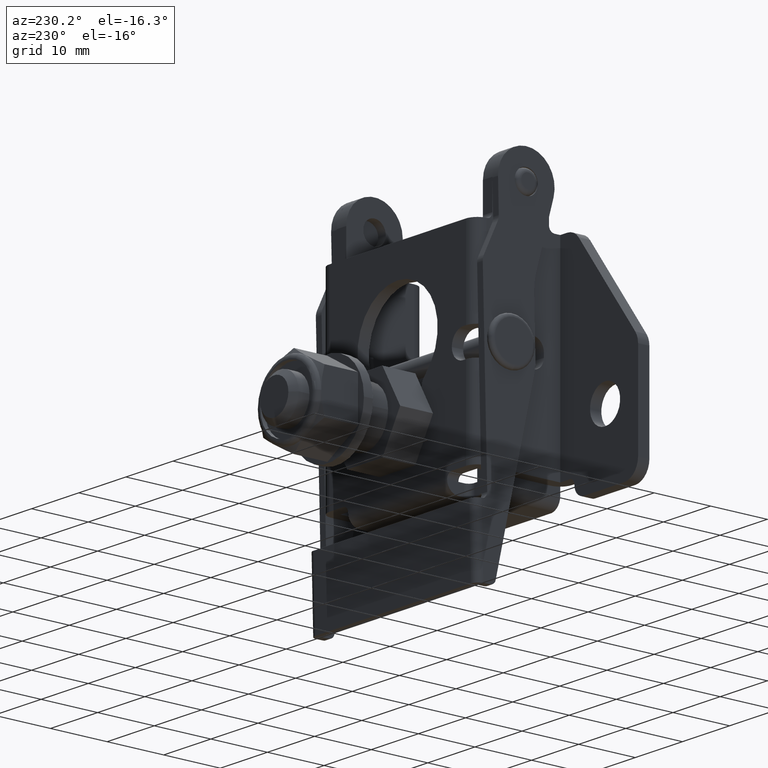
[diagram: clean part render]
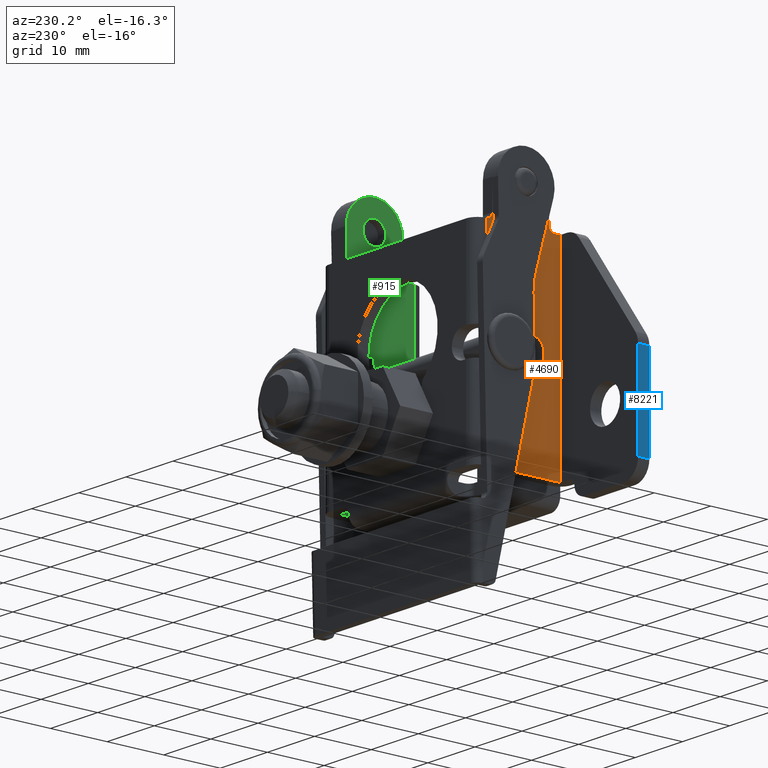
[diagram: same view with three faces highlighted in distinct colors, each labeled with its STEP entity id]
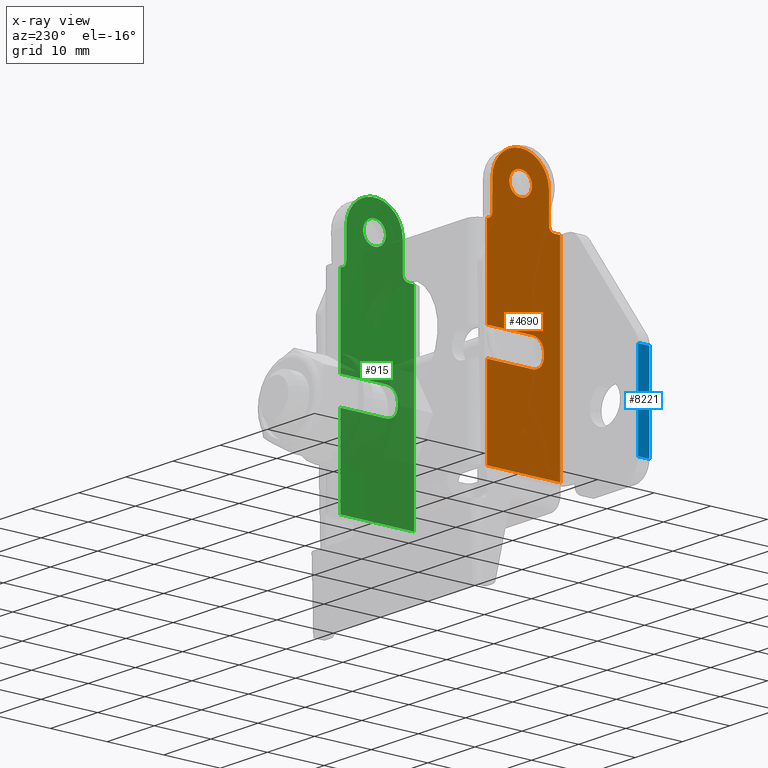
[diagram: x-ray of the same camera — body ghosted, the three highlighted faces saturated]
A machine part, auxiliary view with three faces highlighted in distinct colors.
The next image is the same camera in x-ray (body ghosted, the three faces saturated) — at least one of them is partly hidden behind the body in this view.
Their STEP definitions:

[orange] entity #4690 — the highlighted planar face has unit normal (1, 0, -0).
#81 = AXIS2_PLACEMENT_3D ( 'NONE', #822, #6253, #1584 ) ;
#176 = EDGE_LOOP ( 'NONE', ( #1496, #8383 ) ) ;
#343 = CARTESIAN_POINT ( 'NONE',  ( -16.50000000000000000, 2.000000000000001800, -9.000000000000001800 ) ) ;
#402 = DIRECTION ( 'NONE',  ( 0.0000000000000000000, 0.0000000000000000000, -1.000000000000000000 ) ) ;
#462 = EDGE_CURVE ( 'NONE', #858, #6034, #3776, .T. ) ;
#501 = DIRECTION ( 'NONE',  ( 1.000000000000000000, 0.0000000000000000000, -1.577021341797097600E-016 ) ) ;
#509 = DIRECTION ( 'NONE',  ( -1.577021341797097600E-016, -0.0000000000000000000, -1.000000000000000000 ) ) ;
#538 = VERTEX_POINT ( 'NONE', #4076 ) ;
#582 = CARTESIAN_POINT ( 'NONE',  ( -16.49999999999999600, 4.900000000000001200, 8.100000000000005000 ) ) ;
#588 = DIRECTION ( 'NONE',  ( 1.000000000000000000, 0.0000000000000000000, -1.577021341797097600E-016 ) ) ;
#603 = DIRECTION ( 'NONE',  ( 0.0000000000000000000, 0.0000000000000000000, -1.000000000000000000 ) ) ;
#605 = EDGE_CURVE ( 'NONE', #9067, #1378, #730, .T. ) ;
#730 = LINE ( 'NONE', #2570, #8750 ) ;
#758 = EDGE_CURVE ( 'NONE', #538, #5832, #8724, .T. ) ;
#822 = CARTESIAN_POINT ( 'NONE',  ( -16.49999999999999600, 6.900000000000001200, 8.100000000000005000 ) ) ;
#858 = VERTEX_POINT ( 'NONE', #9347 ) ;
#974 = ORIENTED_EDGE ( 'NONE', *, *, #3189, .T. ) ;
#1037 = CARTESIAN_POINT ( 'NONE',  ( -16.49999999999999300, 9.000000000000001800, 32.00000000000000000 ) ) ;
#1048 = DIRECTION ( 'NONE',  ( 1.000000000000000000, 0.0000000000000000000, -1.577021341797097600E-016 ) ) ;
#1160 = VERTEX_POINT ( 'NONE', #8485 ) ;
#1229 = DIRECTION ( 'NONE',  ( -1.577021341797097600E-016, 0.0000000000000000000, -1.000000000000000000 ) ) ;
#1297 = ORIENTED_EDGE ( 'NONE', *, *, #2509, .F. ) ;
#1352 = DIRECTION ( 'NONE',  ( 0.0000000000000000000, -1.000000000000000000, 0.0000000000000000000 ) ) ;
#1378 = VERTEX_POINT ( 'NONE', #6156 ) ;
#1451 = ORIENTED_EDGE ( 'NONE', *, *, #1656, .T. ) ;
#1496 = ORIENTED_EDGE ( 'NONE', *, *, #9829, .T. ) ;
#1526 = VECTOR ( 'NONE', #9018, 1000.000000000000000 ) ;
#1528 = CARTESIAN_POINT ( 'NONE',  ( -16.49999999999999300, 4.000000000000000000, 27.00000000000000700 ) ) ;
#1584 = DIRECTION ( 'NONE',  ( 0.0000000000000000000, 0.0000000000000000000, -1.000000000000000000 ) ) ;
#1656 = EDGE_CURVE ( 'NONE', #7479, #538, #3473, .T. ) ;
#1661 = FACE_OUTER_BOUND ( 'NONE', #7454, .T. ) ;
#1698 = VECTOR ( 'NONE', #5457, 1000.000000000000000 ) ;
#1751 = CARTESIAN_POINT ( 'NONE',  ( -16.49999999999999600, 6.900000000000001200, 10.90000000000000700 ) ) ;
#1772 = EDGE_CURVE ( 'NONE', #10036, #1160, #4582, .T. ) ;
#1800 = DIRECTION ( 'NONE',  ( 0.0000000000000000000, 0.0000000000000000000, -1.000000000000000000 ) ) ;
#1841 = EDGE_CURVE ( 'NONE', #2374, #3604, #7483, .T. ) ;
#1859 = LINE ( 'NONE', #7558, #9920 ) ;
#1921 = AXIS2_PLACEMENT_3D ( 'NONE', #1037, #6449, #1800 ) ;
#2002 = AXIS2_PLACEMENT_3D ( 'NONE', #8855, #4203, #9646 ) ;
#2006 = ORIENTED_EDGE ( 'NONE', *, *, #9273, .T. ) ;
#2028 = EDGE_CURVE ( 'NONE', #4285, #9067, #8579, .T. ) ;
#2125 = DIRECTION ( 'NONE',  ( 0.0000000000000000000, -1.000000000000000000, 0.0000000000000000000 ) ) ;
#2162 = CARTESIAN_POINT ( 'NONE',  ( -16.49999999999999300, 3.000000000000000000, 26.00000000000000700 ) ) ;
#2239 = EDGE_CURVE ( 'NONE', #6034, #3604, #9197, .T. ) ;
#2261 = EDGE_CURVE ( 'NONE', #1160, #1378, #7107, .T. ) ;
#2293 = VERTEX_POINT ( 'NONE', #7229 ) ;
#2324 = CIRCLE ( 'NONE', #8843, 1.000000000000000900 ) ;
#2374 = VERTEX_POINT ( 'NONE', #343 ) ;
#2399 = AXIS2_PLACEMENT_3D ( 'NONE', #9729, #5059, #402 ) ;
#2493 = VECTOR ( 'NONE', #4098, 1000.000000000000000 ) ;
#2509 = EDGE_CURVE ( 'NONE', #2293, #2374, #5176, .T. ) ;
#2518 = VECTOR ( 'NONE', #1352, 1000.000000000000000 ) ;
#2542 = CARTESIAN_POINT ( 'NONE',  ( -16.49999999999999300, 9.000000000000001800, 32.00000000000000000 ) ) ;
#2570 = CARTESIAN_POINT ( 'NONE',  ( -16.50000000000000000, 4.000000000000000000, -12.00000000000000000 ) ) ;
#2819 = VERTEX_POINT ( 'NONE', #3353 ) ;
#2933 = CARTESIAN_POINT ( 'NONE',  ( -16.49999999999999600, 15.00000000000000200, 10.90000000000000700 ) ) ;
#3059 = EDGE_CURVE ( 'NONE', #5832, #6363, #4439, .T. ) ;
#3090 = ORIENTED_EDGE ( 'NONE', *, *, #462, .T. ) ;
#3096 = VECTOR ( 'NONE', #509, 1000.000000000000000 ) ;
#3161 = EDGE_CURVE ( 'NONE', #4285, #2293, #1859, .T. ) ;
#3189 = EDGE_CURVE ( 'NONE', #6363, #5563, #6252, .T. ) ;
#3221 = VECTOR ( 'NONE', #8735, 1000.000000000000000 ) ;
#3324 = DIRECTION ( 'NONE',  ( 0.0000000000000000000, 0.0000000000000000000, -1.000000000000000000 ) ) ;
#3329 = CARTESIAN_POINT ( 'NONE',  ( -16.49999999999999300, 9.000000000000001800, 33.99999999999999300 ) ) ;
#3353 = CARTESIAN_POINT ( 'NONE',  ( -16.49999999999999300, 9.000000000000001800, 30.00000000000000700 ) ) ;
#3473 = LINE ( 'NONE', #2933, #5311 ) ;
#3484 = FACE_BOUND ( 'NONE', #176, .T. ) ;
#3580 = CARTESIAN_POINT ( 'NONE',  ( -16.50000000000000000, 2.000000000000001800, -9.000000000000001800 ) ) ;
#3604 = VERTEX_POINT ( 'NONE', #6981 ) ;
#3670 = CARTESIAN_POINT ( 'NONE',  ( -16.50000000000000000, 2.000000000000001800, -12.00000000000000000 ) ) ;
#3702 = CARTESIAN_POINT ( 'NONE',  ( -16.49999999999999600, 4.900000000000001200, 10.90000000000000700 ) ) ;
#3776 = LINE ( 'NONE', #9331, #1698 ) ;
#3783 = DIRECTION ( 'NONE',  ( 1.000000000000000000, 0.0000000000000000000, -1.577021341797097600E-016 ) ) ;
#3976 = VERTEX_POINT ( 'NONE', #3329 ) ;
#4076 = CARTESIAN_POINT ( 'NONE',  ( -16.49999999999999600, 15.00000000000000200, 10.90000000000000700 ) ) ;
#4079 = CARTESIAN_POINT ( 'NONE',  ( -16.50000000000000000, 15.00000000000000200, -9.000000000000001800 ) ) ;
#4098 = DIRECTION ( 'NONE',  ( -5.782411586589358600E-016, 0.0000000000000000000, 1.000000000000000000 ) ) ;
#4143 = ORIENTED_EDGE ( 'NONE', *, *, #3161, .F. ) ;
#4203 = DIRECTION ( 'NONE',  ( 1.000000000000000000, -0.0000000000000000000, -1.577021341797097600E-016 ) ) ;
#4285 = VERTEX_POINT ( 'NONE', #2162 ) ;
#4390 = CARTESIAN_POINT ( 'NONE',  ( -16.50000000000000000, 2.000000000000001800, -12.00000000000000000 ) ) ;
#4420 = ORIENTED_EDGE ( 'NONE', *, *, #2261, .F. ) ;
#4439 = CIRCLE ( 'NONE', #6155, 2.000000000000000000 ) ;
#4575 = LINE ( 'NONE', #6401, #2493 ) ;
#4582 = CIRCLE ( 'NONE', #1921, 4.999999999999997300 ) ;
#4690 = ADVANCED_FACE ( 'NONE', ( #3484, #1661 ), #6752, .F. ) ;
#4877 = EDGE_CURVE ( 'NONE', #5563, #858, #7963, .T. ) ;
#4892 = CARTESIAN_POINT ( 'NONE',  ( -16.49999999999999300, 15.00000000000000200, 26.00000000000000400 ) ) ;
#4996 = CIRCLE ( 'NONE', #2399, 1.999999999999994900 ) ;
#5059 = DIRECTION ( 'NONE',  ( 1.000000000000000000, -0.0000000000000000000, -1.577021341797097600E-016 ) ) ;
#5166 = CARTESIAN_POINT ( 'NONE',  ( -16.49999999999999600, 6.900000000000001200, 8.900000000000007500 ) ) ;
#5176 = LINE ( 'NONE', #4390, #3096 ) ;
#5311 = VECTOR ( 'NONE', #1229, 1000.000000000000000 ) ;
#5358 = ORIENTED_EDGE ( 'NONE', *, *, #605, .T. ) ;
#5457 = DIRECTION ( 'NONE',  ( 0.0000000000000000000, 1.000000000000000000, 1.433655765270088600E-016 ) ) ;
#5563 = VERTEX_POINT ( 'NONE', #582 ) ;
#5696 = CARTESIAN_POINT ( 'NONE',  ( -16.49999999999999300, 15.00000000000000400, 27.00000000000000400 ) ) ;
#5832 = VERTEX_POINT ( 'NONE', #1751 ) ;
#5845 = EDGE_CURVE ( 'NONE', #6551, #10036, #4575, .T. ) ;
#5934 = DIRECTION ( 'NONE',  ( 0.0000000000000000000, 0.0000000000000000000, -1.000000000000000000 ) ) ;
#5951 = CARTESIAN_POINT ( 'NONE',  ( -16.49999999999999300, 14.00000000000000200, 32.00000000000000000 ) ) ;
#6012 = DIRECTION ( 'NONE',  ( -1.577021341797097600E-016, 0.0000000000000000000, -1.000000000000000000 ) ) ;
#6034 = VERTEX_POINT ( 'NONE', #6248 ) ;
#6155 = AXIS2_PLACEMENT_3D ( 'NONE', #5166, #501, #5934 ) ;
#6156 = CARTESIAN_POINT ( 'NONE',  ( -16.49999999999999300, 4.000000000000000000, 32.00000000000000000 ) ) ;
#6167 = ORIENTED_EDGE ( 'NONE', *, *, #3059, .T. ) ;
#6205 = CIRCLE ( 'NONE', #2002, 1.999999999999994900 ) ;
#6248 = CARTESIAN_POINT ( 'NONE',  ( -16.49999999999999600, 15.00000000000000200, 6.100000000000006800 ) ) ;
#6252 = LINE ( 'NONE', #3702, #7820 ) ;
#6253 = DIRECTION ( 'NONE',  ( 1.000000000000000000, 0.0000000000000000000, -1.577021341797097600E-016 ) ) ;
#6363 = VERTEX_POINT ( 'NONE', #10022 ) ;
#6398 = ORIENTED_EDGE ( 'NONE', *, *, #2028, .T. ) ;
#6401 = CARTESIAN_POINT ( 'NONE',  ( -16.49999999999999300, 14.00000000000000200, 26.00000000000000400 ) ) ;
#6449 = DIRECTION ( 'NONE',  ( 1.000000000000000000, -0.0000000000000000000, -1.577021341797097600E-016 ) ) ;
#6464 = DIRECTION ( 'NONE',  ( 0.0000000000000000000, 0.0000000000000000000, -1.000000000000000000 ) ) ;
#6540 = AXIS2_PLACEMENT_3D ( 'NONE', #3670, #588, #6012 ) ;
#6551 = VERTEX_POINT ( 'NONE', #7141 ) ;
#6752 = PLANE ( 'NONE',  #6540 ) ;
#6767 = CARTESIAN_POINT ( 'NONE',  ( -16.49999999999999600, 17.00000000000000000, 10.90000000000000700 ) ) ;
#6928 = ORIENTED_EDGE ( 'NONE', *, *, #2239, .T. ) ;
#6981 = CARTESIAN_POINT ( 'NONE',  ( -16.50000000000000000, 15.00000000000000200, -9.000000000000001800 ) ) ;
#7107 = CIRCLE ( 'NONE', #8509, 4.999999999999997300 ) ;
#7141 = CARTESIAN_POINT ( 'NONE',  ( -16.49999999999999300, 14.00000000000000200, 27.00000000000000400 ) ) ;
#7229 = CARTESIAN_POINT ( 'NONE',  ( -16.49999999999999300, 2.000000000000001800, 26.00000000000000400 ) ) ;
#7454 = EDGE_LOOP ( 'NONE', ( #9533, #2006, #1451, #8011, #6167, #974, #8038, #3090, #6928, #9728, #1297, #4143, #6398, #5358, #4420, #7463 ) ) ;
#7463 = ORIENTED_EDGE ( 'NONE', *, *, #1772, .F. ) ;
#7479 = VERTEX_POINT ( 'NONE', #4892 ) ;
#7483 = LINE ( 'NONE', #3580, #1526 ) ;
#7558 = CARTESIAN_POINT ( 'NONE',  ( -16.49999999999999300, 2.000000000000001800, 26.00000000000000700 ) ) ;
#7820 = VECTOR ( 'NONE', #603, 1000.000000000000000 ) ;
#7963 = CIRCLE ( 'NONE', #81, 2.000000000000000000 ) ;
#7967 = DIRECTION ( 'NONE',  ( 1.000000000000000000, -0.0000000000000000000, -1.577021341797097600E-016 ) ) ;
#8011 = ORIENTED_EDGE ( 'NONE', *, *, #758, .T. ) ;
#8038 = ORIENTED_EDGE ( 'NONE', *, *, #4877, .T. ) ;
#8383 = ORIENTED_EDGE ( 'NONE', *, *, #9372, .T. ) ;
#8432 = CARTESIAN_POINT ( 'NONE',  ( -16.49999999999999300, 3.000000000000000000, 27.00000000000000400 ) ) ;
#8485 = CARTESIAN_POINT ( 'NONE',  ( -16.49999999999999300, 9.000000000000001800, 37.00000000000000000 ) ) ;
#8509 = AXIS2_PLACEMENT_3D ( 'NONE', #2542, #7967, #3324 ) ;
#8579 = CIRCLE ( 'NONE', #9762, 1.000000000000000900 ) ;
#8724 = LINE ( 'NONE', #6767, #2518 ) ;
#8735 = DIRECTION ( 'NONE',  ( -1.577021341797097600E-016, 0.0000000000000000000, -1.000000000000000000 ) ) ;
#8750 = VECTOR ( 'NONE', #9594, 1000.000000000000000 ) ;
#8843 = AXIS2_PLACEMENT_3D ( 'NONE', #5696, #1048, #6464 ) ;
#8855 = CARTESIAN_POINT ( 'NONE',  ( -16.49999999999999300, 9.000000000000001800, 32.00000000000000000 ) ) ;
#9018 = DIRECTION ( 'NONE',  ( 0.0000000000000000000, 1.000000000000000000, 0.0000000000000000000 ) ) ;
#9067 = VERTEX_POINT ( 'NONE', #1528 ) ;
#9197 = LINE ( 'NONE', #4079, #3221 ) ;
#9225 = DIRECTION ( 'NONE',  ( 0.0000000000000000000, 0.0000000000000000000, -1.000000000000000000 ) ) ;
#9273 = EDGE_CURVE ( 'NONE', #6551, #7479, #2324, .T. ) ;
#9331 = CARTESIAN_POINT ( 'NONE',  ( -16.49999999999999600, 17.00000000000000000, 6.100000000000006800 ) ) ;
#9347 = CARTESIAN_POINT ( 'NONE',  ( -16.49999999999999600, 6.900000000000001200, 6.100000000000005000 ) ) ;
#9372 = EDGE_CURVE ( 'NONE', #3976, #2819, #4996, .T. ) ;
#9533 = ORIENTED_EDGE ( 'NONE', *, *, #5845, .F. ) ;
#9594 = DIRECTION ( 'NONE',  ( 1.577021341797097600E-016, -0.0000000000000000000, 1.000000000000000000 ) ) ;
#9646 = DIRECTION ( 'NONE',  ( 0.0000000000000000000, 0.0000000000000000000, -1.000000000000000000 ) ) ;
#9728 = ORIENTED_EDGE ( 'NONE', *, *, #1841, .F. ) ;
#9729 = CARTESIAN_POINT ( 'NONE',  ( -16.49999999999999300, 9.000000000000001800, 32.00000000000000000 ) ) ;
#9762 = AXIS2_PLACEMENT_3D ( 'NONE', #8432, #3783, #9225 ) ;
#9829 = EDGE_CURVE ( 'NONE', #2819, #3976, #6205, .T. ) ;
#9920 = VECTOR ( 'NONE', #2125, 1000.000000000000000 ) ;
#10022 = CARTESIAN_POINT ( 'NONE',  ( -16.49999999999999600, 4.900000000000001200, 8.900000000000007500 ) ) ;
#10036 = VERTEX_POINT ( 'NONE', #5951 ) ;

[blue] entity #8221 — the highlighted planar face has unit normal (1, 0, -0).
#305 = CARTESIAN_POINT ( 'NONE',  ( -33.00000000000000000, 0.0000000000000000000, -12.00000000000000000 ) ) ;
#427 = LINE ( 'NONE', #7291, #4327 ) ;
#741 = CARTESIAN_POINT ( 'NONE',  ( -33.00000000000000000, 2.000000000000001800, -9.000000000000000000 ) ) ;
#806 = LINE ( 'NONE', #2918, #6499 ) ;
#1045 = CARTESIAN_POINT ( 'NONE',  ( -33.00000000000000000, 17.00000000000000000, -12.00000000000000000 ) ) ;
#1315 = VECTOR ( 'NONE', #4956, 1000.000000000000000 ) ;
#1809 = DIRECTION ( 'NONE',  ( -3.154042683594195600E-016, 0.0000000000000000000, -1.000000000000000000 ) ) ;
#2350 = EDGE_CURVE ( 'NONE', #9230, #10001, #427, .T. ) ;
#2918 = CARTESIAN_POINT ( 'NONE',  ( -33.00000000000000000, 2.000000000000001800, -12.00000000000000000 ) ) ;
#2953 = ORIENTED_EDGE ( 'NONE', *, *, #5593, .F. ) ;
#2962 = EDGE_LOOP ( 'NONE', ( #9849, #3227, #2953, #3645 ) ) ;
#3227 = ORIENTED_EDGE ( 'NONE', *, *, #2350, .T. ) ;
#3318 = CARTESIAN_POINT ( 'NONE',  ( -32.99999999999999300, 0.0000000000000000000, 7.000000000000009800 ) ) ;
#3363 = LINE ( 'NONE', #305, #1315 ) ;
#3419 = DIRECTION ( 'NONE',  ( -0.0000000000000000000, 1.000000000000000000, -0.0000000000000000000 ) ) ;
#3645 = ORIENTED_EDGE ( 'NONE', *, *, #4661, .T. ) ;
#4327 = VECTOR ( 'NONE', #3419, 1000.000000000000000 ) ;
#4431 = DIRECTION ( 'NONE',  ( 0.0000000000000000000, -1.000000000000000000, 0.0000000000000000000 ) ) ;
#4481 = EDGE_CURVE ( 'NONE', #6954, #9230, #3363, .T. ) ;
#4661 = EDGE_CURVE ( 'NONE', #9557, #6954, #9955, .T. ) ;
#4956 = DIRECTION ( 'NONE',  ( 3.154042683594195100E-016, 0.0000000000000000000, 1.000000000000000000 ) ) ;
#5156 = CARTESIAN_POINT ( 'NONE',  ( -33.00000000000000000, 2.000000000000001800, 7.000000000000009800 ) ) ;
#5211 = CARTESIAN_POINT ( 'NONE',  ( -33.00000000000000000, 17.00000000000000000, -9.000000000000000000 ) ) ;
#5234 = DIRECTION ( 'NONE',  ( 0.0000000000000000000, 0.0000000000000000000, 1.000000000000000000 ) ) ;
#5593 = EDGE_CURVE ( 'NONE', #9557, #10001, #806, .T. ) ;
#6040 = VECTOR ( 'NONE', #4431, 1000.000000000000000 ) ;
#6456 = DIRECTION ( 'NONE',  ( 1.000000000000000000, 0.0000000000000000000, -3.154042683594195600E-016 ) ) ;
#6499 = VECTOR ( 'NONE', #5234, 1000.000000000000000 ) ;
#6954 = VERTEX_POINT ( 'NONE', #8131 ) ;
#7215 = AXIS2_PLACEMENT_3D ( 'NONE', #1045, #6456, #1809 ) ;
#7291 = CARTESIAN_POINT ( 'NONE',  ( -32.99999999999999300, 2.000000000000001800, 7.000000000000010700 ) ) ;
#8131 = CARTESIAN_POINT ( 'NONE',  ( -33.00000000000000000, 0.0000000000000000000, -9.000000000000000000 ) ) ;
#8221 = ADVANCED_FACE ( 'NONE', ( #9653 ), #9586, .F. ) ;
#9230 = VERTEX_POINT ( 'NONE', #3318 ) ;
#9557 = VERTEX_POINT ( 'NONE', #741 ) ;
#9586 = PLANE ( 'NONE',  #7215 ) ;
#9653 = FACE_OUTER_BOUND ( 'NONE', #2962, .T. ) ;
#9849 = ORIENTED_EDGE ( 'NONE', *, *, #4481, .T. ) ;
#9955 = LINE ( 'NONE', #5211, #6040 ) ;
#10001 = VERTEX_POINT ( 'NONE', #5156 ) ;

[green] entity #915 — the highlighted planar face has unit normal (-1, 0, 0).
#21 = DIRECTION ( 'NONE',  ( -1.182766006347823100E-016, 0.0000000000000000000, -1.000000000000000000 ) ) ;
#333 = CARTESIAN_POINT ( 'NONE',  ( 14.50000000000000200, 6.900000000000001200, 8.900000000000007500 ) ) ;
#460 = CIRCLE ( 'NONE', #3716, 1.000000000000000900 ) ;
#493 = LINE ( 'NONE', #1750, #8760 ) ;
#580 = DIRECTION ( 'NONE',  ( 0.0000000000000000000, -1.000000000000000000, 0.0000000000000000000 ) ) ;
#807 = EDGE_CURVE ( 'NONE', #9171, #9737, #460, .T. ) ;
#808 = DIRECTION ( 'NONE',  ( 1.000000000000000000, -0.0000000000000000000, -1.182766006347823100E-016 ) ) ;
#840 = CARTESIAN_POINT ( 'NONE',  ( 14.50000000000000500, 2.999999999999999100, 26.00000000000000400 ) ) ;
#841 = EDGE_CURVE ( 'NONE', #5411, #8621, #6171, .T. ) ;
#894 = VERTEX_POINT ( 'NONE', #840 ) ;
#915 = ADVANCED_FACE ( 'NONE', ( #3620, #5922 ), #9447, .T. ) ;
#1023 = AXIS2_PLACEMENT_3D ( 'NONE', #7259, #2616, #8036 ) ;
#1044 = ORIENTED_EDGE ( 'NONE', *, *, #1869, .F. ) ;
#1108 = DIRECTION ( 'NONE',  ( 0.0000000000000000000, 0.0000000000000000000, 1.000000000000000000 ) ) ;
#1262 = LINE ( 'NONE', #2876, #7201 ) ;
#1292 = VECTOR ( 'NONE', #5947, 1000.000000000000000 ) ;
#1360 = LINE ( 'NONE', #4980, #7296 ) ;
#1361 = CARTESIAN_POINT ( 'NONE',  ( 14.50000000000000000, 15.00000000000000000, -9.000000000000005300 ) ) ;
#1393 = CARTESIAN_POINT ( 'NONE',  ( 14.49999999999999500, 4.000000000000000000, 32.00000000000000000 ) ) ;
#1398 = VECTOR ( 'NONE', #8199, 1000.000000000000000 ) ;
#1417 = LINE ( 'NONE', #6723, #8343 ) ;
#1452 = EDGE_CURVE ( 'NONE', #2344, #8450, #3117, .T. ) ;
#1527 = EDGE_CURVE ( 'NONE', #894, #7604, #4217, .T. ) ;
#1654 = EDGE_CURVE ( 'NONE', #5257, #7604, #1417, .T. ) ;
#1662 = DIRECTION ( 'NONE',  ( 0.0000000000000000000, 1.000000000000000000, 0.0000000000000000000 ) ) ;
#1674 = DIRECTION ( 'NONE',  ( -1.000000000000000000, 0.0000000000000000000, 1.182766006347823100E-016 ) ) ;
#1682 = EDGE_CURVE ( 'NONE', #9737, #8450, #3233, .T. ) ;
#1699 = EDGE_CURVE ( 'NONE', #9171, #8210, #7363, .T. ) ;
#1750 = CARTESIAN_POINT ( 'NONE',  ( 14.50000000000000500, 2.000000000000000000, 26.00000000000000400 ) ) ;
#1869 = EDGE_CURVE ( 'NONE', #9691, #8404, #3341, .T. ) ;
#2008 = CARTESIAN_POINT ( 'NONE',  ( 14.50000000000000500, 15.00000000000000000, -9.000000000000007100 ) ) ;
#2104 = VERTEX_POINT ( 'NONE', #6160 ) ;
#2118 = EDGE_LOOP ( 'NONE', ( #9822, #3313, #6071, #9288, #9817, #7883, #5722, #5920, #6667, #9898, #2848, #8765, #5340, #1044, #4667 ) ) ;
#2310 = EDGE_CURVE ( 'NONE', #8210, #5257, #2739, .T. ) ;
#2326 = CARTESIAN_POINT ( 'NONE',  ( 14.50000000000000200, 15.00000000000000400, 27.00000000000000400 ) ) ;
#2344 = VERTEX_POINT ( 'NONE', #5742 ) ;
#2364 = CARTESIAN_POINT ( 'NONE',  ( 14.50000000000000500, 9.000000000000001800, 32.00000000000000000 ) ) ;
#2430 = CIRCLE ( 'NONE', #9845, 1.999999999999988000 ) ;
#2459 = DIRECTION ( 'NONE',  ( 1.182766006347823100E-016, 0.0000000000000000000, 1.000000000000000000 ) ) ;
#2560 = CARTESIAN_POINT ( 'NONE',  ( 14.49999999999999500, 14.00000000000000200, 32.00000000000000000 ) ) ;
#2596 = DIRECTION ( 'NONE',  ( 1.000000000000000000, -0.0000000000000000000, -1.182766006347823100E-016 ) ) ;
#2616 = DIRECTION ( 'NONE',  ( 1.000000000000000000, 0.0000000000000000000, 1.577021341797097600E-016 ) ) ;
#2623 = CARTESIAN_POINT ( 'NONE',  ( 14.50000000000000000, 15.00000000000000000, -12.00000000000001100 ) ) ;
#2739 = CIRCLE ( 'NONE', #1023, 4.999999999999997300 ) ;
#2840 = CARTESIAN_POINT ( 'NONE',  ( 14.50000000000000200, 6.900000000000001200, 6.100000000000004100 ) ) ;
#2848 = ORIENTED_EDGE ( 'NONE', *, *, #8245, .T. ) ;
#2876 = CARTESIAN_POINT ( 'NONE',  ( 14.50000000000000000, 15.00000000000000000, -12.00000000000001100 ) ) ;
#3040 = CARTESIAN_POINT ( 'NONE',  ( 14.50000000000000500, 9.000000000000001800, 30.00000000000001400 ) ) ;
#3111 = DIRECTION ( 'NONE',  ( 0.0000000000000000000, 0.0000000000000000000, 1.000000000000000000 ) ) ;
#3117 = LINE ( 'NONE', #6468, #4934 ) ;
#3140 = DIRECTION ( 'NONE',  ( -1.000000000000000000, 0.0000000000000000000, 1.182766006347823100E-016 ) ) ;
#3233 = LINE ( 'NONE', #2623, #7114 ) ;
#3313 = ORIENTED_EDGE ( 'NONE', *, *, #9721, .T. ) ;
#3341 = LINE ( 'NONE', #6688, #1292 ) ;
#3516 = EDGE_CURVE ( 'NONE', #6829, #8137, #9536, .T. ) ;
#3526 = CARTESIAN_POINT ( 'NONE',  ( 14.50000000000000500, 2.000000000000000000, 26.00000000000000400 ) ) ;
#3620 = FACE_OUTER_BOUND ( 'NONE', #2118, .T. ) ;
#3655 = CARTESIAN_POINT ( 'NONE',  ( 14.50000000000000500, 15.00000000000000000, 10.90000000000000700 ) ) ;
#3693 = AXIS2_PLACEMENT_3D ( 'NONE', #7009, #808, #10115 ) ;
#3716 = AXIS2_PLACEMENT_3D ( 'NONE', #2326, #6974, #3111 ) ;
#3831 = EDGE_CURVE ( 'NONE', #6860, #8404, #6344, .T. ) ;
#4217 = CIRCLE ( 'NONE', #3693, 1.000000000000000900 ) ;
#4448 = CARTESIAN_POINT ( 'NONE',  ( 14.50000000000000500, 9.000000000000001800, 32.00000000000000000 ) ) ;
#4667 = ORIENTED_EDGE ( 'NONE', *, *, #7074, .T. ) ;
#4749 = AXIS2_PLACEMENT_3D ( 'NONE', #2364, #3140, #8584 ) ;
#4809 = VECTOR ( 'NONE', #6264, 1000.000000000000000 ) ;
#4934 = VECTOR ( 'NONE', #1662, 1000.000000000000000 ) ;
#4943 = CARTESIAN_POINT ( 'NONE',  ( 14.50000000000000200, 4.900000000000001200, 8.100000000000003200 ) ) ;
#4980 = CARTESIAN_POINT ( 'NONE',  ( 14.50000000000000500, 15.00000000000000000, 26.00000000000000400 ) ) ;
#5056 = AXIS2_PLACEMENT_3D ( 'NONE', #7244, #2596, #8013 ) ;
#5116 = CARTESIAN_POINT ( 'NONE',  ( 14.50000000000000000, 4.900000000000001200, -12.00000000000001100 ) ) ;
#5134 = CARTESIAN_POINT ( 'NONE',  ( 14.50000000000000500, 4.000000000000000000, 27.00000000000000400 ) ) ;
#5223 = DIRECTION ( 'NONE',  ( 0.0000000000000000000, 0.0000000000000000000, 1.000000000000000000 ) ) ;
#5257 = VERTEX_POINT ( 'NONE', #1393 ) ;
#5340 = ORIENTED_EDGE ( 'NONE', *, *, #3831, .T. ) ;
#5362 = CARTESIAN_POINT ( 'NONE',  ( 14.50000000000000000, 14.00000000000000200, -12.00000000000001100 ) ) ;
#5398 = VECTOR ( 'NONE', #580, 1000.000000000000000 ) ;
#5411 = VERTEX_POINT ( 'NONE', #9699 ) ;
#5426 = DIRECTION ( 'NONE',  ( -1.182766006347823100E-016, -0.0000000000000000000, -1.000000000000000000 ) ) ;
#5496 = VERTEX_POINT ( 'NONE', #3526 ) ;
#5502 = CARTESIAN_POINT ( 'NONE',  ( 14.50000000000000000, 15.00000000000000000, -12.00000000000001100 ) ) ;
#5601 = ORIENTED_EDGE ( 'NONE', *, *, #841, .F. ) ;
#5633 = CARTESIAN_POINT ( 'NONE',  ( 14.50000000000000500, 15.00000000000000000, 26.00000000000000400 ) ) ;
#5722 = ORIENTED_EDGE ( 'NONE', *, *, #1699, .F. ) ;
#5742 = CARTESIAN_POINT ( 'NONE',  ( 14.50000000000000400, 6.900000000000001200, 10.90000000000000700 ) ) ;
#5764 = DIRECTION ( 'NONE',  ( 1.000000000000000000, -0.0000000000000000000, -1.182766006347823100E-016 ) ) ;
#5767 = DIRECTION ( 'NONE',  ( 0.0000000000000000000, 1.000000000000000000, 0.0000000000000000000 ) ) ;
#5920 = ORIENTED_EDGE ( 'NONE', *, *, #807, .T. ) ;
#5922 = FACE_BOUND ( 'NONE', #9395, .T. ) ;
#5947 = DIRECTION ( 'NONE',  ( -1.695679303966034700E-032, -1.000000000000000000, -1.433655765270088600E-016 ) ) ;
#6071 = ORIENTED_EDGE ( 'NONE', *, *, #9330, .T. ) ;
#6160 = CARTESIAN_POINT ( 'NONE',  ( 14.50000000000000200, 4.900000000000001200, 8.900000000000005700 ) ) ;
#6171 = CIRCLE ( 'NONE', #4749, 1.999999999999988000 ) ;
#6264 = DIRECTION ( 'NONE',  ( 1.182766006347823100E-016, 0.0000000000000000000, 1.000000000000000000 ) ) ;
#6295 = EDGE_CURVE ( 'NONE', #6860, #2104, #9930, .T. ) ;
#6307 = CARTESIAN_POINT ( 'NONE',  ( 14.50000000000000500, 14.00000000000000200, 27.00000000000000400 ) ) ;
#6344 = CIRCLE ( 'NONE', #5056, 2.000000000000000000 ) ;
#6468 = CARTESIAN_POINT ( 'NONE',  ( 14.50000000000000400, 15.00000000000000000, 10.90000000000000700 ) ) ;
#6667 = ORIENTED_EDGE ( 'NONE', *, *, #1682, .T. ) ;
#6688 = CARTESIAN_POINT ( 'NONE',  ( 14.50000000000000200, 14.99999999999999800, 6.100000000000005000 ) ) ;
#6723 = CARTESIAN_POINT ( 'NONE',  ( 14.50000000000000000, 4.000000000000000000, -12.00000000000001100 ) ) ;
#6829 = VERTEX_POINT ( 'NONE', #2008 ) ;
#6860 = VERTEX_POINT ( 'NONE', #4943 ) ;
#6974 = DIRECTION ( 'NONE',  ( 1.000000000000000000, -0.0000000000000000000, -1.182766006347823100E-016 ) ) ;
#7009 = CARTESIAN_POINT ( 'NONE',  ( 14.50000000000000500, 3.000000000000000000, 27.00000000000000400 ) ) ;
#7074 = EDGE_CURVE ( 'NONE', #9691, #6829, #1262, .T. ) ;
#7114 = VECTOR ( 'NONE', #5426, 1000.000000000000000 ) ;
#7173 = DIRECTION ( 'NONE',  ( 1.182766006347823100E-016, -0.0000000000000000000, 1.000000000000000000 ) ) ;
#7201 = VECTOR ( 'NONE', #7518, 1000.000000000000000 ) ;
#7244 = CARTESIAN_POINT ( 'NONE',  ( 14.50000000000000200, 6.900000000000001200, 8.100000000000005000 ) ) ;
#7259 = CARTESIAN_POINT ( 'NONE',  ( 14.49999999999999500, 9.000000000000001800, 32.00000000000000000 ) ) ;
#7296 = VECTOR ( 'NONE', #5767, 1000.000000000000000 ) ;
#7363 = LINE ( 'NONE', #5362, #4809 ) ;
#7518 = DIRECTION ( 'NONE',  ( -1.182766006347823100E-016, -0.0000000000000000000, -1.000000000000000000 ) ) ;
#7604 = VERTEX_POINT ( 'NONE', #5134 ) ;
#7811 = CIRCLE ( 'NONE', #8262, 2.000000000000000000 ) ;
#7883 = ORIENTED_EDGE ( 'NONE', *, *, #2310, .F. ) ;
#7925 = CARTESIAN_POINT ( 'NONE',  ( 14.50000000000000000, 2.000000000000000000, -9.000000000000005300 ) ) ;
#8013 = DIRECTION ( 'NONE',  ( 0.0000000000000000000, 0.0000000000000000000, 1.000000000000000000 ) ) ;
#8036 = DIRECTION ( 'NONE',  ( 0.0000000000000000000, 0.0000000000000000000, -1.000000000000000000 ) ) ;
#8137 = VERTEX_POINT ( 'NONE', #7925 ) ;
#8199 = DIRECTION ( 'NONE',  ( 1.182766006347823100E-016, 0.0000000000000000000, 1.000000000000000000 ) ) ;
#8210 = VERTEX_POINT ( 'NONE', #2560 ) ;
#8245 = EDGE_CURVE ( 'NONE', #2344, #2104, #7811, .T. ) ;
#8262 = AXIS2_PLACEMENT_3D ( 'NONE', #333, #5764, #1108 ) ;
#8343 = VECTOR ( 'NONE', #21, 1000.000000000000000 ) ;
#8404 = VERTEX_POINT ( 'NONE', #2840 ) ;
#8450 = VERTEX_POINT ( 'NONE', #3655 ) ;
#8584 = DIRECTION ( 'NONE',  ( 0.0000000000000000000, 0.0000000000000000000, 1.000000000000000000 ) ) ;
#8621 = VERTEX_POINT ( 'NONE', #3040 ) ;
#8760 = VECTOR ( 'NONE', #7173, 1000.000000000000000 ) ;
#8765 = ORIENTED_EDGE ( 'NONE', *, *, #6295, .F. ) ;
#8785 = ORIENTED_EDGE ( 'NONE', *, *, #10047, .F. ) ;
#9171 = VERTEX_POINT ( 'NONE', #6307 ) ;
#9288 = ORIENTED_EDGE ( 'NONE', *, *, #1527, .T. ) ;
#9330 = EDGE_CURVE ( 'NONE', #5496, #894, #1360, .T. ) ;
#9395 = EDGE_LOOP ( 'NONE', ( #5601, #8785 ) ) ;
#9447 = PLANE ( 'NONE',  #9974 ) ;
#9452 = CARTESIAN_POINT ( 'NONE',  ( 14.50000000000000500, 15.00000000000000000, 6.100000000000006800 ) ) ;
#9536 = LINE ( 'NONE', #1361, #5398 ) ;
#9691 = VERTEX_POINT ( 'NONE', #9452 ) ;
#9699 = CARTESIAN_POINT ( 'NONE',  ( 14.50000000000000500, 9.000000000000001800, 33.99999999999998600 ) ) ;
#9721 = EDGE_CURVE ( 'NONE', #8137, #5496, #493, .T. ) ;
#9737 = VERTEX_POINT ( 'NONE', #5633 ) ;
#9817 = ORIENTED_EDGE ( 'NONE', *, *, #1654, .F. ) ;
#9822 = ORIENTED_EDGE ( 'NONE', *, *, #3516, .T. ) ;
#9845 = AXIS2_PLACEMENT_3D ( 'NONE', #4448, #9884, #5223 ) ;
#9884 = DIRECTION ( 'NONE',  ( -1.000000000000000000, 0.0000000000000000000, 1.182766006347823100E-016 ) ) ;
#9898 = ORIENTED_EDGE ( 'NONE', *, *, #1452, .F. ) ;
#9930 = LINE ( 'NONE', #5116, #1398 ) ;
#9974 = AXIS2_PLACEMENT_3D ( 'NONE', #5502, #1674, #2459 ) ;
#10047 = EDGE_CURVE ( 'NONE', #8621, #5411, #2430, .T. ) ;
#10115 = DIRECTION ( 'NONE',  ( 0.0000000000000000000, 0.0000000000000000000, 1.000000000000000000 ) ) ;